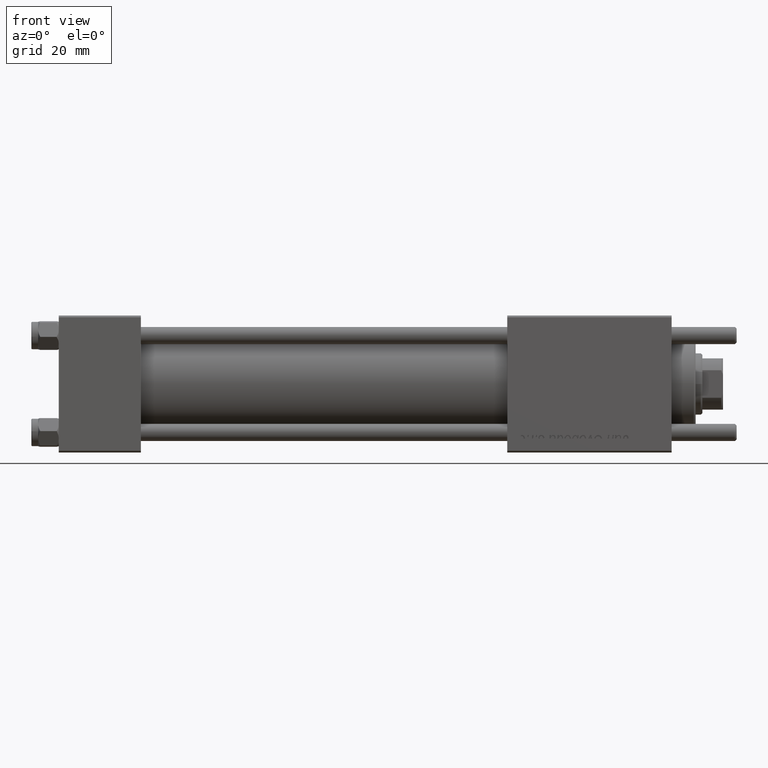
[diagram: clean part render]
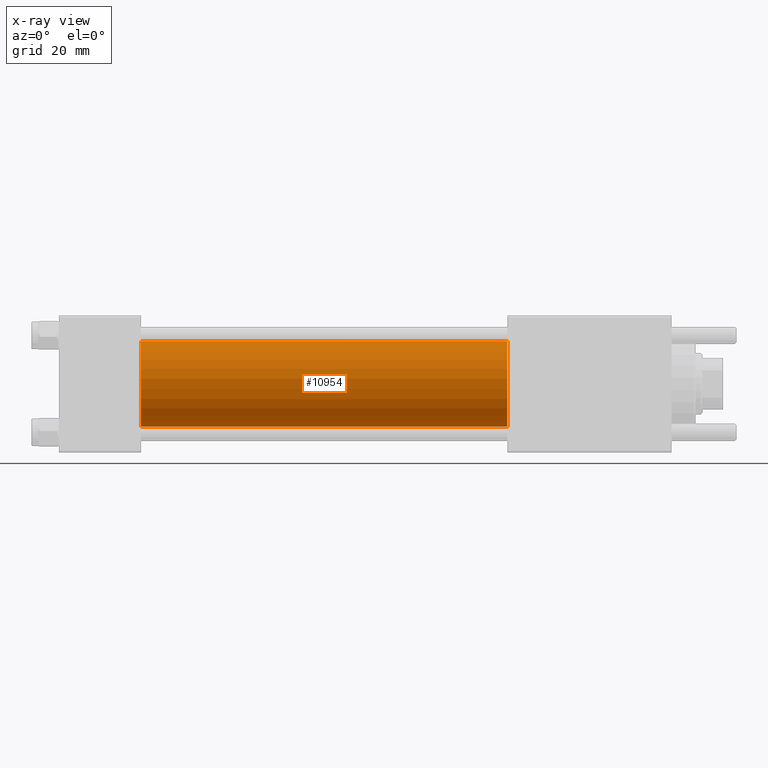
[diagram: x-ray — body ghosted, one internal face saturated and labeled with its STEP entity id]
A machine part, front view, then the same camera in x-ray: the body is ghosted and one INTERNAL B-rep face — a face not visible from any outside direction — is saturated and labeled: STEP entity #10954.
In plain terms, the highlighted cylindrical surface (partial cylindrical patch) has radius 12.5 mm, axis along (-1, -0, -0).
Its self-contained STEP definition (entity closure, byte-faithful):
#902 = CARTESIAN_POINT ( 'NONE',  ( 131.0000000000000000, -1.071276715031019515E-15, -12.49999999999999645 ) ) ;
#1077 = ORIENTED_EDGE ( 'NONE', *, *, #50505, .F. ) ;
#1288 = DIRECTION ( 'NONE',  ( -1.000000000000000000, -0.000000000000000000, -0.000000000000000000 ) ) ;
#5530 = EDGE_CURVE ( 'NONE', #40063, #8781, #27774, .T. ) ;
#7632 = VECTOR ( 'NONE', #9498, 1000.000000000000000 ) ;
#8781 = VERTEX_POINT ( 'NONE', #37103 ) ;
#9498 = DIRECTION ( 'NONE',  ( -1.000000000000000000, -0.000000000000000000, -0.000000000000000000 ) ) ;
#10866 = DIRECTION ( 'NONE',  ( 0.000000000000000000, 0.000000000000000000, -1.000000000000000000 ) ) ;
#10954 = ADVANCED_FACE ( 'NONE', ( #36562 ), #40296, .F. ) ;
#12571 = CARTESIAN_POINT ( 'NONE',  ( 131.0000000000000000, -2.602085213965210642E-15, 12.49999999999999645 ) ) ;
#14243 = VERTEX_POINT ( 'NONE', #51378 ) ;
#18794 = VECTOR ( 'NONE', #55867, 1000.000000000000000 ) ;
#19581 = DIRECTION ( 'NONE',  ( 0.000000000000000000, 0.000000000000000000, -1.000000000000000000 ) ) ;
#24084 = AXIS2_PLACEMENT_3D ( 'NONE', #50424, #46129, #10866 ) ;
#27612 = ORIENTED_EDGE ( 'NONE', *, *, #44304, .T. ) ;
#27774 = CIRCLE ( 'NONE', #24084, 12.49999999999999645 ) ;
#30689 = AXIS2_PLACEMENT_3D ( 'NONE', #33344, #46517, #19581 ) ;
#31101 = ORIENTED_EDGE ( 'NONE', *, *, #5530, .T. ) ;
#33344 = CARTESIAN_POINT ( 'NONE',  ( 24.00000000000000000, -2.602085213965210642E-15, 0.000000000000000000 ) ) ;
#34335 = CIRCLE ( 'NONE', #30689, 12.49999999999999645 ) ;
#36176 = AXIS2_PLACEMENT_3D ( 'NONE', #50295, #1288, #49174 ) ;
#36562 = FACE_OUTER_BOUND ( 'NONE', #53795, .T. ) ;
#37103 = CARTESIAN_POINT ( 'NONE',  ( 131.0000000000000000, -1.071276715031019515E-15, -12.49999999999999645 ) ) ;
#38306 = CARTESIAN_POINT ( 'NONE',  ( 131.0000000000000000, -2.602085213965210642E-15, 12.49999999999999645 ) ) ;
#40063 = VERTEX_POINT ( 'NONE', #38306 ) ;
#40296 = CYLINDRICAL_SURFACE ( 'NONE', #36176, 12.49999999999999645 ) ;
#43582 = CARTESIAN_POINT ( 'NONE',  ( 24.00000000000000000, -2.602085213965210642E-15, 12.49999999999999645 ) ) ;
#44304 = EDGE_CURVE ( 'NONE', #8781, #14243, #52502, .T. ) ;
#46129 = DIRECTION ( 'NONE',  ( 1.000000000000000000, 0.000000000000000000, 0.000000000000000000 ) ) ;
#46378 = ORIENTED_EDGE ( 'NONE', *, *, #55807, .F. ) ;
#46517 = DIRECTION ( 'NONE',  ( 1.000000000000000000, 0.000000000000000000, 0.000000000000000000 ) ) ;
#47322 = VERTEX_POINT ( 'NONE', #43582 ) ;
#49174 = DIRECTION ( 'NONE',  ( 0.000000000000000000, 0.000000000000000000, 1.000000000000000000 ) ) ;
#50295 = CARTESIAN_POINT ( 'NONE',  ( 131.0000000000000000, -2.602085213965210642E-15, 0.000000000000000000 ) ) ;
#50424 = CARTESIAN_POINT ( 'NONE',  ( 131.0000000000000000, -2.602085213965210642E-15, 0.000000000000000000 ) ) ;
#50505 = EDGE_CURVE ( 'NONE', #47322, #14243, #34335, .T. ) ;
#51378 = CARTESIAN_POINT ( 'NONE',  ( 24.00000000000000000, -1.071276715031019515E-15, -12.49999999999999645 ) ) ;
#51843 = LINE ( 'NONE', #12571, #18794 ) ;
#52502 = LINE ( 'NONE', #902, #7632 ) ;
#53795 = EDGE_LOOP ( 'NONE', ( #31101, #27612, #1077, #46378 ) ) ;
#55807 = EDGE_CURVE ( 'NONE', #40063, #47322, #51843, .T. ) ;
#55867 = DIRECTION ( 'NONE',  ( -1.000000000000000000, -0.000000000000000000, -0.000000000000000000 ) ) ;